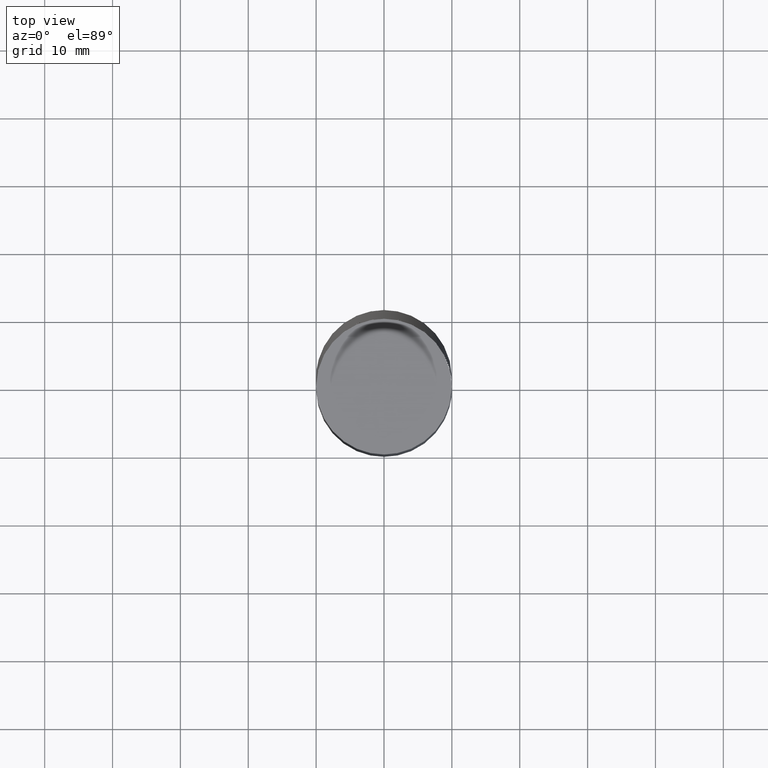
[diagram: clean part render]
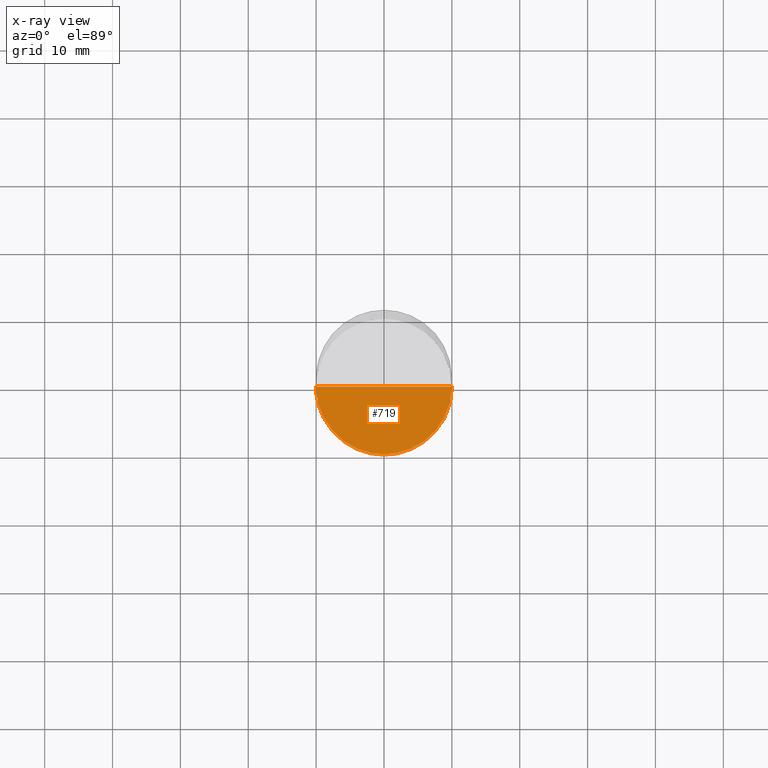
[diagram: x-ray — body ghosted, one internal face saturated and labeled with its STEP entity id]
A machine part, top view, then the same camera in x-ray: the body is ghosted and one INTERNAL B-rep face — a face not visible from any outside direction — is saturated and labeled: STEP entity #719.
In plain terms, the highlighted face is a freeform B-spline surface patch.
Its self-contained STEP definition (entity closure, byte-faithful):
#571=CARTESIAN_POINT('',(10.0,0.0,-5.0));
#575=CARTESIAN_POINT('',(-10.0,0.0,-5.0));
#576=CARTESIAN_POINT('',(0.0,0.0,-5.0));
#583=CARTESIAN_POINT('',(-10.0,-10.0,-5.0));
#584=CARTESIAN_POINT('',(0.0,-10.0,-5.0));
#585=CARTESIAN_POINT('',(10.0,-10.0,-5.0));
#704=(
BOUNDED_SURFACE()
B_SPLINE_SURFACE(1,2,(
(#575,#583,#584,#585,#571),
(#576,#576,#576,#576,#576)
), .UNSPECIFIED.,.F.,.F.,.F.)
B_SPLINE_SURFACE_WITH_KNOTS((2,2),(3,2,3),(
0.0,1.0),(
0.0,0.5,1.0), .UNSPECIFIED.)
GEOMETRIC_REPRESENTATION_ITEM()
RATIONAL_B_SPLINE_SURFACE(((1.0,0.707106781187,1.0,0.707106781187,1.0),
(1.0,0.707106781187,1.0,0.707106781187,1.0)
))
REPRESENTATION_ITEM('')
SURFACE()
);
#705=(
BOUNDED_CURVE()
B_SPLINE_CURVE(2,(#571,#585,#584,#583,#575),.UNSPECIFIED.,.F.,.F.)
B_SPLINE_CURVE_WITH_KNOTS((3,2,3),
(0.0,0.5,1.0),.UNSPECIFIED.)
CURVE()
GEOMETRIC_REPRESENTATION_ITEM()
RATIONAL_B_SPLINE_CURVE((1.0,0.707106781187,1.0,0.707106781187,1.0))
REPRESENTATION_ITEM('')
);
#706=(
BOUNDED_CURVE()
B_SPLINE_CURVE(1,(#575,#576),.UNSPECIFIED.,.F.,.F.)
B_SPLINE_CURVE_WITH_KNOTS((2,2),
(0.0,1.0),.UNSPECIFIED.)
CURVE()
GEOMETRIC_REPRESENTATION_ITEM()
RATIONAL_B_SPLINE_CURVE((1.0,1.0))
REPRESENTATION_ITEM('')
);
#707=(
BOUNDED_CURVE()
B_SPLINE_CURVE(1,(#576,#571),.UNSPECIFIED.,.F.,.F.)
B_SPLINE_CURVE_WITH_KNOTS((2,2),
(0.0,1.0),.UNSPECIFIED.)
CURVE()
GEOMETRIC_REPRESENTATION_ITEM()
RATIONAL_B_SPLINE_CURVE((1.0,1.0))
REPRESENTATION_ITEM('')
);
#708=VERTEX_POINT('',#571);
#709=VERTEX_POINT('',#575);
#710=VERTEX_POINT('',#576);
#711=EDGE_CURVE('',#708,#709,#705,.T.);
#712=EDGE_CURVE('',#709,#710,#706,.T.);
#713=EDGE_CURVE('',#710,#708,#707,.T.);
#714=ORIENTED_EDGE('',*,*,#711,.T.);
#715=ORIENTED_EDGE('',*,*,#712,.T.);
#716=ORIENTED_EDGE('',*,*,#713,.T.);
#717=EDGE_LOOP('',(#714,#715,#716));
#718=FACE_OUTER_BOUND('',#717,.T.);
#719=ADVANCED_FACE('',(#718),#704,.T.);